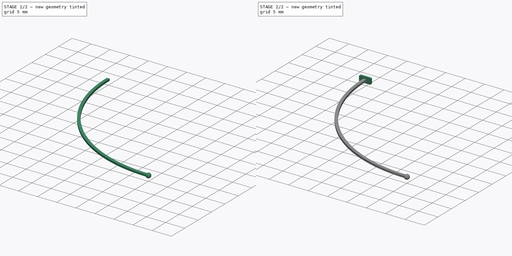
[diagram: build sequence overview — one tinted view per stage of 2, left to right]
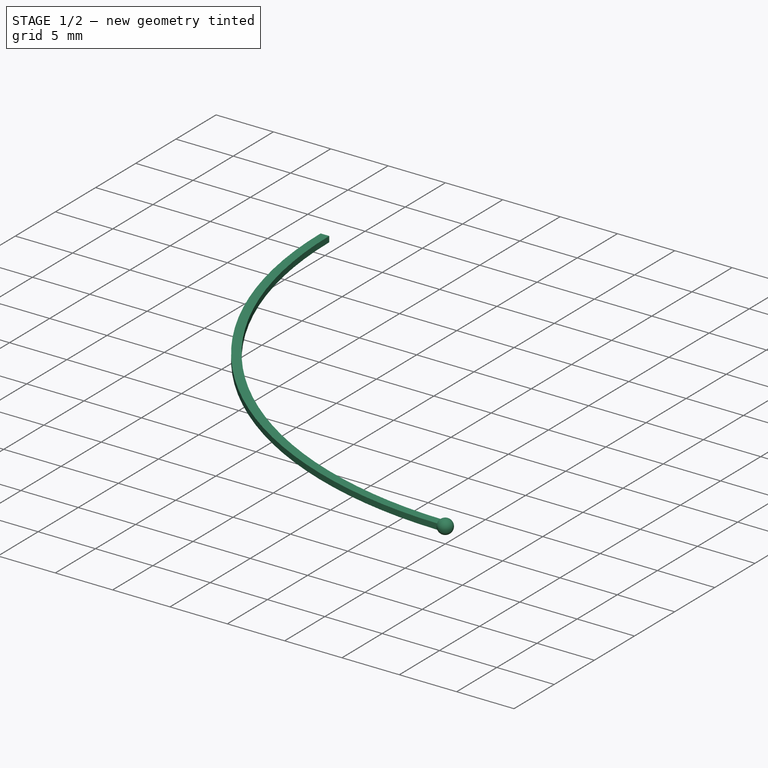
[diagram: stage 1 of 2 — iso view after this stage's code; geometry added in this stage tinted green]
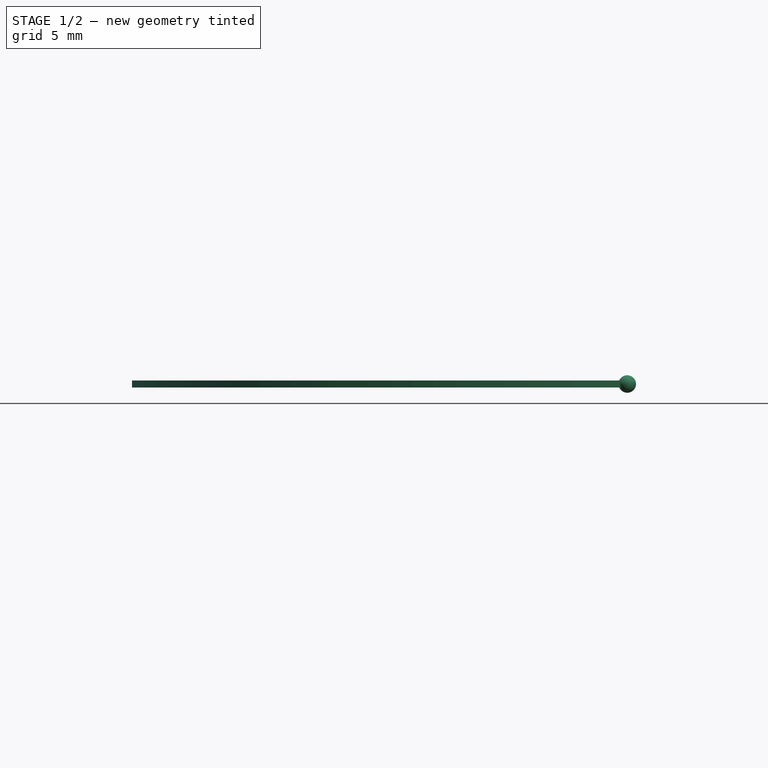
[diagram: stage 1 of 2 — front view after this stage's code; geometry added in this stage tinted green]
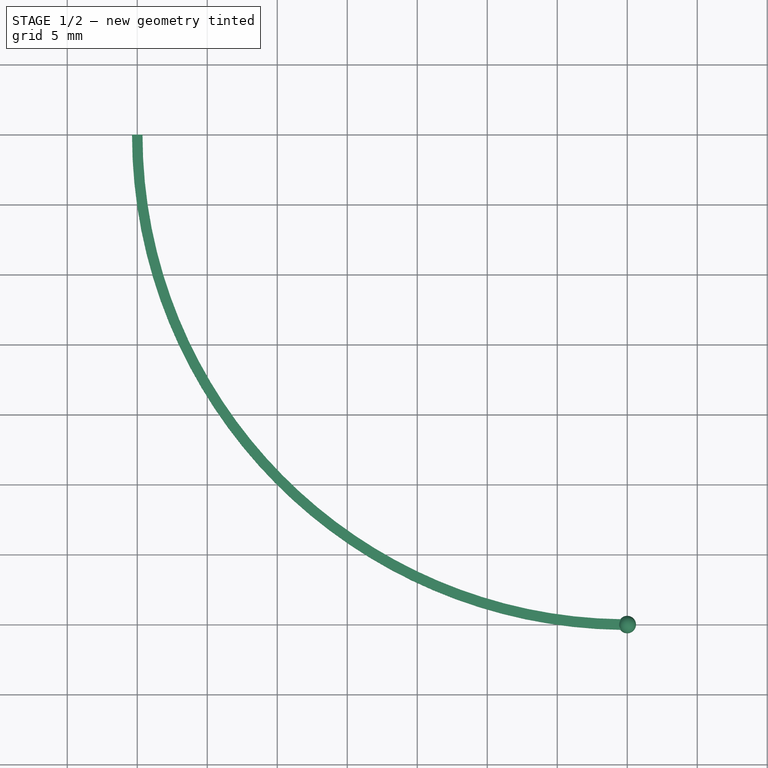
[diagram: stage 1 of 2 — top view after this stage's code; geometry added in this stage tinted green]
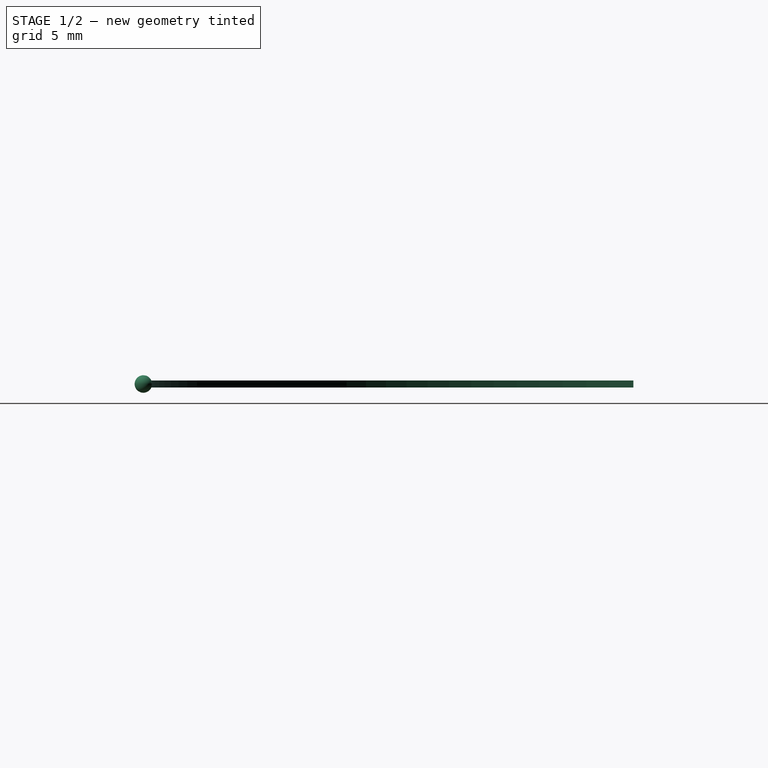
[diagram: stage 1 of 2 — right view after this stage's code; geometry added in this stage tinted green]
FCSTD DOCUMENT  (FreeCAD 0.20R29177 (Git))
Label: pwp
License: All rights reserved
LicenseURL: http://en.wikipedia.org/wiki/All_rights_reserved
objects: PartDesign::Line×4, Sketcher::SketchObject×3, PartDesign::Pad×2, Spreadsheet::Sheet×1, PartDesign::Plane×1, PartDesign::Revolution×1, PartDesign::Body×1
note: 15 computed .brp shape members not serialized (recipe doc carries the construction recipe); baked Part::Feature solids carry a one-line shape summary decoded from their .brp

FEATURE [Spreadsheet::Sheet] Spreadsheet
  cells = A2=Design Parameters; A3=RefLength; B3(RefLength)==1mm; A4=ArmArcRadius; B4(ArmArcRadius)==35 * RefLength; A5=ArmWidth; B5(ArmWidth)==0.75 * RefLength; A6=ArmHeight; B6(ArmHeight)==0.5 * RefLength; A7=BallCenterDatumPlaneOffsetX; B7(BallCenterDatumPlaneOffsetX)==ArmArcRadius; A8=BallCenterDatumPlaneOffsetY; B8(BallCenterDatumPlaneOffsetY)==-ArmArcRadius; A9=BallDiameter; B9(BallDiameter)==1.25 * RefLength; A10=ArmBaseWidth; B10(ArmBaseWidth)==3 * RefLength; A11=ArmBaseHeight; B11(ArmBaseHeight)==1.5 * RefLength; A12=ArmBasePadLength; B12(ArmBasePadLength)==0.5 * RefLength; A13=ArmBaseCornerRadius; B13(ArmBaseCornerRadius)==0.25 * RefLength
FEATURE [Sketcher::SketchObject] Sketch  label="ArmSketch"
  FullyConstrained = true
  MapMode = 5
  Support = -> [XY_Plane]
  expr: Constraints[21] = Spreadsheet.ArmWidth
  expr: Constraints[9] = Spreadsheet.ArmArcRadius
  sketch-geometry (13):
    g0: LineSegment StartX=-3.55e-14 StartY=-1.14e-14 StartZ=0 EndX=-3.55e-14 EndY=-35 EndZ=0
    g1: LineSegment StartX=-3.55e-14 StartY=-35 StartZ=0 EndX=35 EndY=-35 EndZ=0
    g2: LineSegment StartX=-3.55e-14 StartY=-1.14e-14 StartZ=0 EndX=35 EndY=-1.14e-14 EndZ=0
    g3: LineSegment StartX=35 StartY=-1.14e-14 StartZ=0 EndX=35 EndY=-35 EndZ=0
    g4: ArcOfCircle CenterX=35 CenterY=-1.14e-14 CenterZ=0 NormalX=0 NormalY=0 NormalZ=1 AngleXU=0 Radius=35 StartAngle=3.14159 EndAngle=4.71239
    g5: LineSegment StartX=-0.375 StartY=-1.14e-14 StartZ=0 EndX=-3.55e-14 EndY=-1.14e-14 EndZ=0
    g6: LineSegment StartX=-3.55e-14 StartY=-1.14e-14 StartZ=0 EndX=0.375 EndY=-1.14e-14 EndZ=0
    g7: ArcOfCircle CenterX=35 CenterY=-1.14e-14 CenterZ=0 NormalX=0 NormalY=0 NormalZ=1 AngleXU=0 Radius=35.375 StartAngle=3.14159 EndAngle=4.71239
    g8: ArcOfCircle CenterX=35 CenterY=-1.14e-14 CenterZ=0 NormalX=0 NormalY=0 NormalZ=1 AngleXU=0 Radius=34.625 StartAngle=3.14159 EndAngle=4.71239
    g9: LineSegment StartX=35 StartY=-35 StartZ=0 EndX=35 EndY=-35.375 EndZ=0
    g10: LineSegment StartX=35 StartY=-34.625 StartZ=0 EndX=35 EndY=-35 EndZ=0
    g11: LineSegment StartX=35 StartY=-34.625 StartZ=0 EndX=35 EndY=-35 EndZ=0
    g12: LineSegment StartX=35 StartY=-35 StartZ=0 EndX=35 EndY=-35.375 EndZ=0
  constraints (33):
    c: Vertical(g0)
    c: Coincident(g0,g1)
    c: Horizontal(g1)
    c: Horizontal(g2)
    c: Coincident(g2,g3)
    c: Vertical(g3)
    c: Coincident(g3,g1)
    c: Coincident(g4,g2)
    c: Coincident(g4,g1)
    c: Radius(g4) = 35
    c: Horizontal(g5)
    c: Horizontal(g6)
    c: Equal(g5,g6)
    c: Coincident(g7,g2)
    c: Coincident(g8,g7)
    c: Vertical(g9)
    c: Coincident(g9,g1)
    c: Coincident(g9,g7)
    c: Vertical(g10)
    c: Coincident(g1,g10)
    c: Coincident(g10,g8)
    c: DistanceX(g5,g6) = 0.75
    c: Coincident(g4,g2)
    c: Coincident(g4,g0)
    c: Coincident(g6,g5)
    c: Coincident(g6,g-1)
    c: Coincident(g0,g5)
    c: Coincident(g8,g6)
    c: Coincident(g7,g5)
    c: Coincident(g11,g8)
    c: Coincident(g11,g1)
    c: Coincident(g12,g11)
    c: Coincident(g12,g7)
FEATURE [PartDesign::Pad] Pad  label="ArmPad"
  Direction = (0,0,1)
  Length = 0.5
  Length2 = 10
  Midplane = true
  Profile = -> Sketch
  ReferenceAxis = -> Sketch [N_Axis]
  Type = 0
  expr: Length = Spreadsheet.ArmHeight
FEATURE [PartDesign::Plane] DatumPlane  label="BallCenterDatumPlane"
  AttachmentOffset = pos=(-35,0,35) rot=(0,0,1;0rad)
  Length = 71.6348
  MapMode = 5
  Placement = pos=(35,-35,1.55e-14) rot=(0.57735,0.57735,0.57735;2.0944rad)
  ResizeMode = 0
  Support = -> [YZ_Plane]
  Width = 61.0112
  expr: .AttachmentOffset.Base.x = Spreadsheet.BallCenterDatumPlaneOffsetY
  expr: .AttachmentOffset.Base.z = Spreadsheet.BallCenterDatumPlaneOffsetX
FEATURE [Sketcher::SketchObject] Sketch001  label="BallSketch"
  FullyConstrained = true
  MapMode = 5
  Placement = pos=(35,-35,1.55e-14) rot=(0.57735,0.57735,0.57735;2.0944rad)
  Support = -> [DatumPlane]
  expr: Constraints[7] = Spreadsheet.BallDiameter
  sketch-geometry (3):
    g0: ArcOfCircle CenterX=-6e-16 CenterY=0 CenterZ=0 NormalX=0 NormalY=0 NormalZ=1 AngleXU=0 Radius=0.625 StartAngle=1.5708 EndAngle=4.71239
    g1: LineSegment StartX=-6e-16 StartY=0.625 StartZ=0 EndX=-6e-16 EndY=0 EndZ=0
    g2: LineSegment StartX=-6e-16 StartY=0 StartZ=0 EndX=-6e-16 EndY=-0.625 EndZ=0
  constraints (8):
    c: Coincident(g0,g-1)
    c: Coincident(g1,g2)
    c: Coincident(g0,g1)
    c: Coincident(g1,g0)
    c: Coincident(g0,g2)
    c: Vertical(g2)
    c: Vertical(g1)
    c: Diameter(g0) = 1.25
FEATURE [PartDesign::Line] DatumLine  label="BallRevolveDatumLine"
  AttacherType = Attacher::AttachEngineLine
  Length = 20
  MapMode = 29
  Placement = pos=(35,-35,1.55e-14) rot=(0,1,0;3.14159rad)
  ResizeMode = 0
  Support = -> [Sketch001]
FEATURE [PartDesign::Revolution] Revolution  label="BallRevolution"
  Angle = 360
  Axis = (0,0,-1)
  Base = (35,-35,1.55e-14)
  BaseFeature = -> Pad
  Profile = -> Sketch001
  ReferenceAxis = -> DatumLine
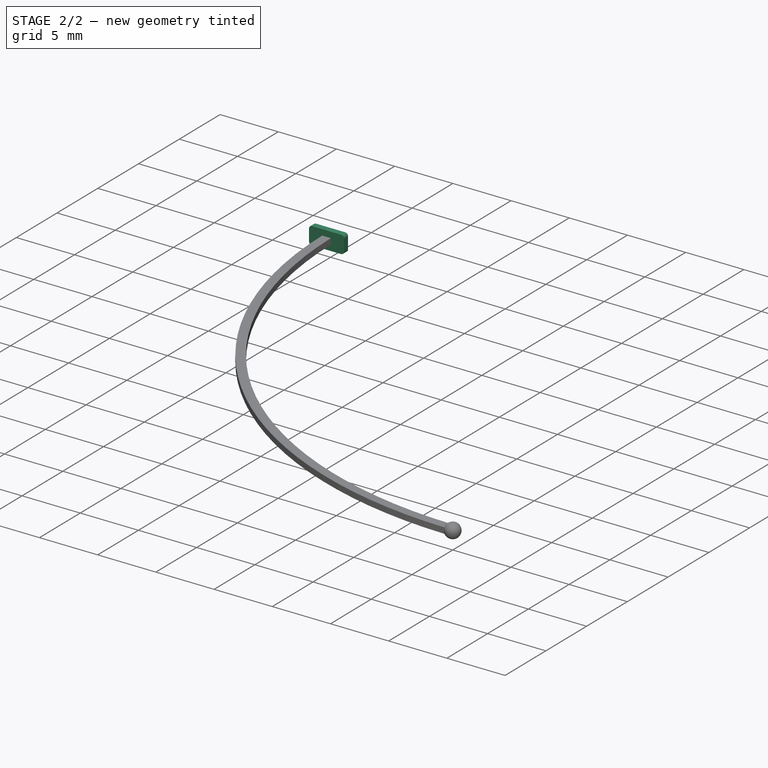
[diagram: stage 2 of 2 — iso view after this stage's code; geometry added in this stage tinted green]
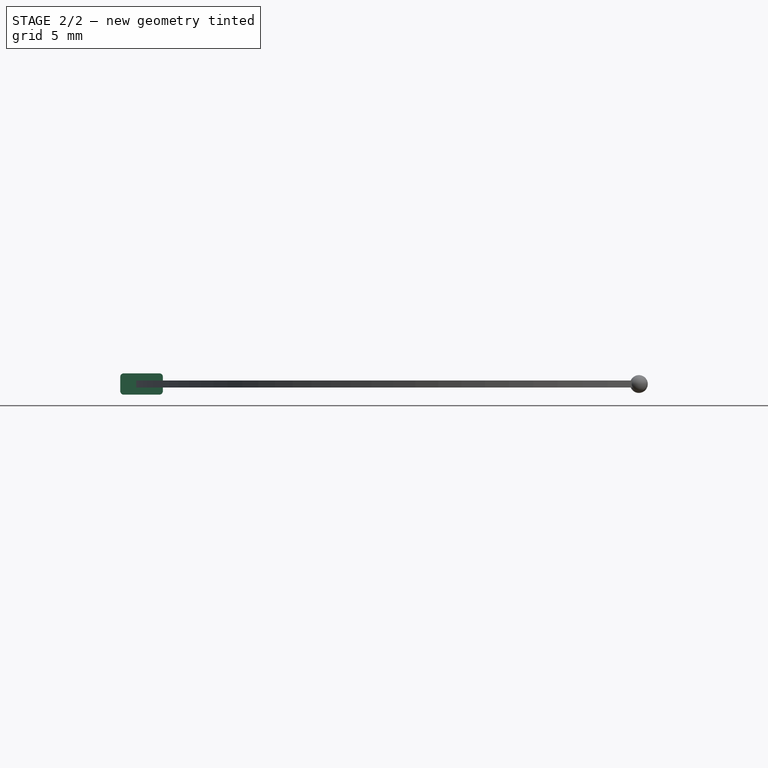
[diagram: stage 2 of 2 — front view after this stage's code; geometry added in this stage tinted green]
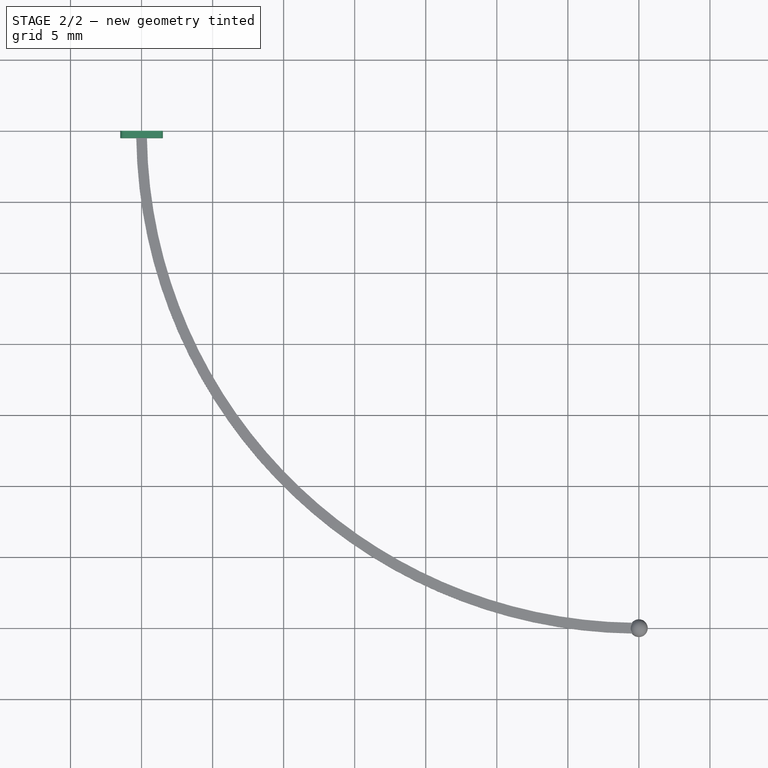
[diagram: stage 2 of 2 — top view after this stage's code; geometry added in this stage tinted green]
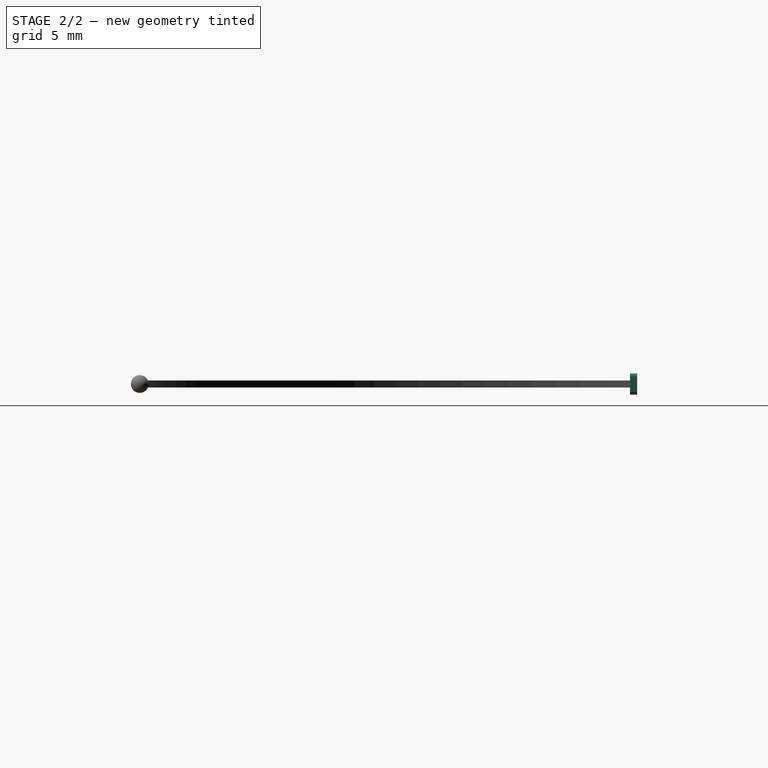
[diagram: stage 2 of 2 — right view after this stage's code; geometry added in this stage tinted green]
FEATURE [Sketcher::SketchObject] Sketch002  label="ArmBaseSketch"
  FullyConstrained = true
  MapMode = 5
  Placement = pos=(0,0,0) rot=(1,0,0;1.5708rad)
  Support = -> [XZ_Plane]
  expr: Constraints[20] = Spreadsheet.ArmBaseWidth
  expr: Constraints[21] = Spreadsheet.ArmBaseCornerRadius
  expr: Constraints[22] = Spreadsheet.ArmBaseHeight
  sketch-geometry (10):
    g0: ArcOfCircle CenterX=-1.25 CenterY=0.5 CenterZ=0 NormalX=0 NormalY=0 NormalZ=1 AngleXU=0 Radius=0.25 StartAngle=1.5708 EndAngle=3.14159
    g1: LineSegment StartX=-1.25 StartY=0.75 StartZ=0 EndX=1.25 EndY=0.75 EndZ=0
    g2: ArcOfCircle CenterX=1.25 CenterY=0.5 CenterZ=0 NormalX=0 NormalY=0 NormalZ=1 AngleXU=0 Radius=0.25 StartAngle=2e-16 EndAngle=1.5708
    g3: LineSegment StartX=1.5 StartY=0.5 StartZ=0 EndX=1.5 EndY=-0.5 EndZ=0
    g4: ArcOfCircle CenterX=1.25 CenterY=-0.5 CenterZ=0 NormalX=0 NormalY=0 NormalZ=1 AngleXU=0 Radius=0.25 StartAngle=4.71239 EndAngle=6.28319
    g5: LineSegment StartX=1.25 StartY=-0.75 StartZ=0 EndX=-1.25 EndY=-0.75 EndZ=0
    g6: ArcOfCircle CenterX=-1.25 CenterY=-0.5 CenterZ=0 NormalX=0 NormalY=0 NormalZ=1 AngleXU=0 Radius=0.25 StartAngle=3.14159 EndAngle=4.71239
    g7: LineSegment StartX=-1.5 StartY=-0.5 StartZ=0 EndX=-1.5 EndY=0.5 EndZ=0
    g8: GeomPoint X=-1.5 Y=0.75 Z=0
    g9: GeomPoint X=1.5 Y=-0.75 Z=0
  constraints (23):
    c: Tangent(g0,g1) = 1.5708
    c: Tangent(g1,g2) = 1.5708
    c: Tangent(g2,g3) = 1.5708
    c: Tangent(g3,g4) = 1.5708
    c: Tangent(g4,g5) = 1.5708
    c: Tangent(g5,g6) = 1.5708
    c: Tangent(g6,g7) = 1.5708
    c: Tangent(g7,g0) = 1.5708
    c: Horizontal(g1)
    c: Horizontal(g5)
    c: Vertical(g3)
    c: Vertical(g7)
    c: Equal(g0,g2)
    c: Equal(g2,g4)
    c: Equal(g4,g6)
    c: PointOnObject(g8,g1)
    c: PointOnObject(g8,g7)
    c: PointOnObject(g9,g3)
    c: PointOnObject(g9,g5)
    c: Symmetric(g0,g4,g-1)
    c: DistanceX(g6,g3) = 3
    c: Radius(g0) = 0.25
    c: DistanceY(g4,g1) = 1.5
FEATURE [PartDesign::Pad] Pad001  label="ArmBasePad"
  BaseFeature = -> Revolution
  Direction = (0,-1,-2e-16)
  Length = 0.5
  Length2 = 10
  Profile = -> Sketch002
  ReferenceAxis = -> Sketch002 [N_Axis]
  Type = 0
  expr: Length = Spreadsheet.ArmBasePadLength
FEATURE [PartDesign::Line] DatumLine001  label="PhiAxisDatumLine"
  AttacherType = Attacher::AttachEngineLine
  Length = 20
  MapMode = 29
  Placement = pos=(35,-35,1.55e-14) rot=(0,1,0;3.14159rad)
  ResizeMode = 0
  Support = -> [Sketch001]
FEATURE [PartDesign::Line] DatumLine002  label="ThetaAxisDatumLine"
  AttacherType = Attacher::AttachEngineLine
  Length = 20
  MapMode = 18
  Placement = pos=(35,-35,1.55e-14) rot=(0.57735,0.57735,0.57735;2.0944rad)
  ResizeMode = 0
  Support = -> [DatumPlane]
FEATURE [PartDesign::Line] DatumLine003  label="AlphaAxisDatumLine"
  AttacherType = Attacher::AttachEngineLine
  Length = 20
  MapMode = 16
  Placement = pos=(35,-35,1.55e-14) rot=(0.57735,0.57735,-0.57735;2.0944rad)
  ResizeMode = 0
  Support = -> [DatumPlane]
FEATURE [PartDesign::Body] Body
  Group = -> [Sketch,Pad,DatumPlane,Sketch001,DatumLine,Revolution,Sketch002,Pad001,DatumLine001,DatumLine002,DatumLine003]
  Origin = -> Origin
  Tip = -> Pad001
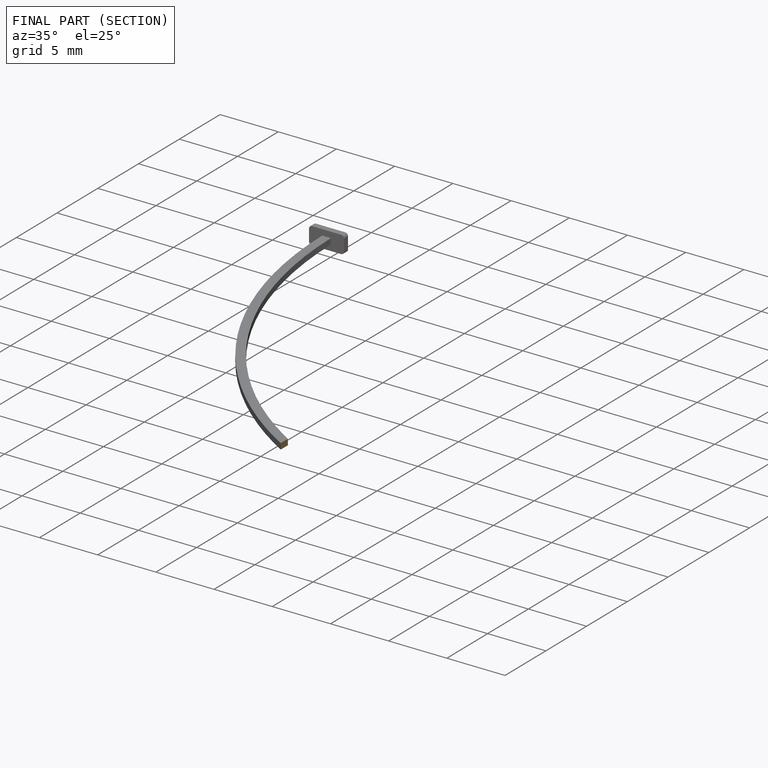
[diagram: finished part — half-section view (interior)]
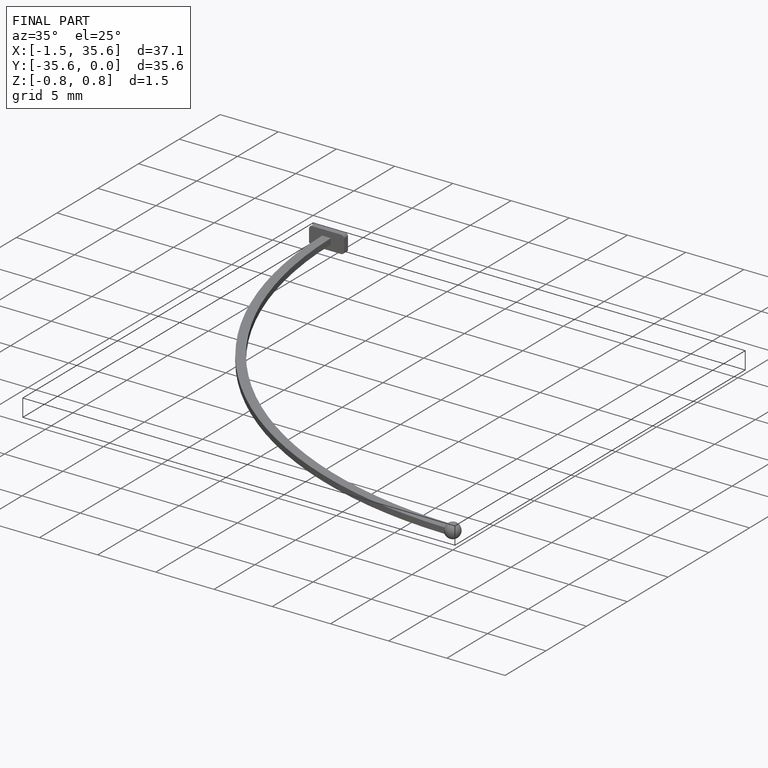
[diagram: finished part — iso view with bounding-box wireframe]
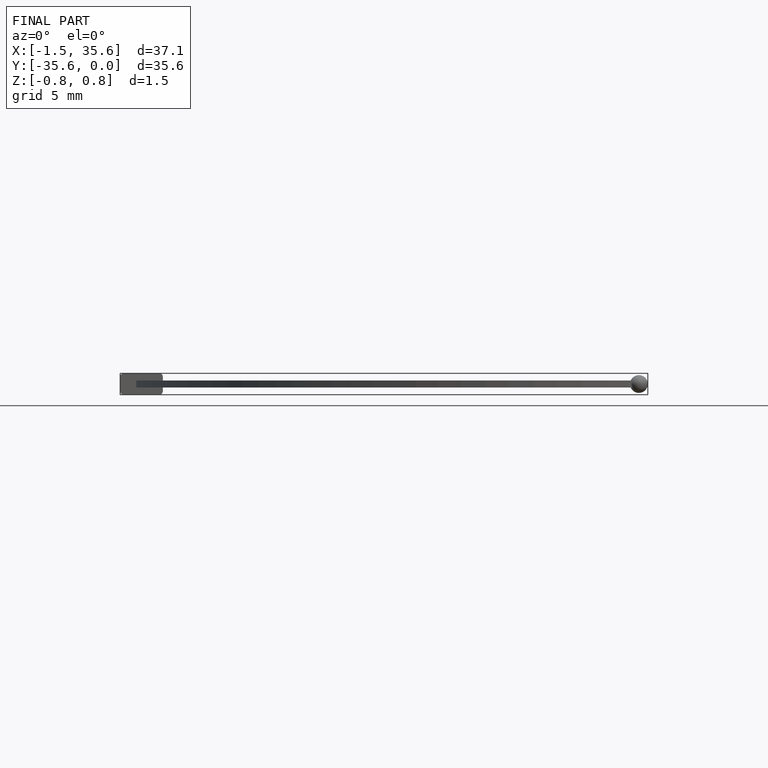
[diagram: finished part — front view with bounding-box wireframe]
